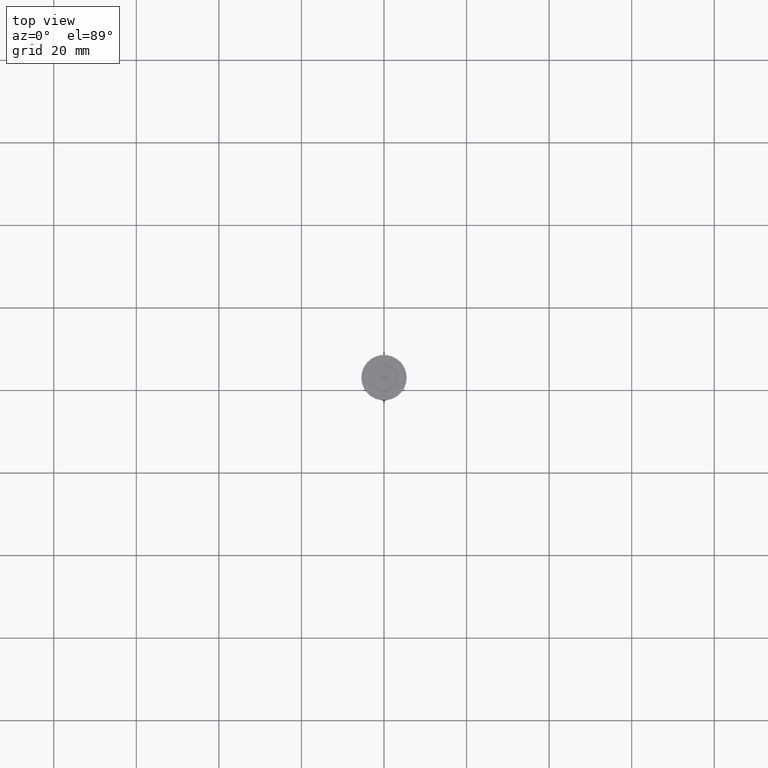
[diagram: clean part render]
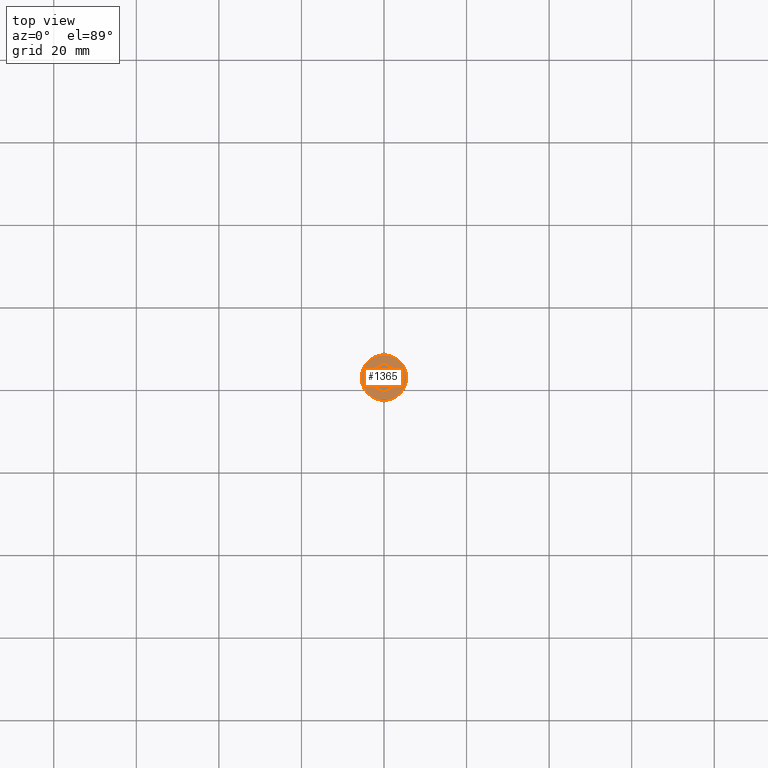
[diagram: same view with one face highlighted and labeled with its STEP entity id]
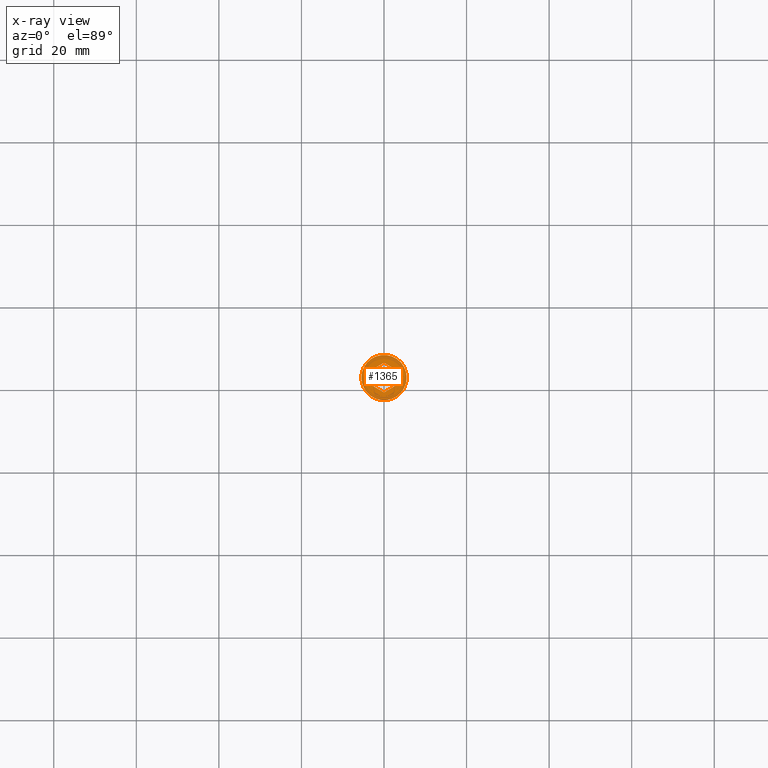
[diagram: x-ray of the same camera — body ghosted, the highlighted face saturated]
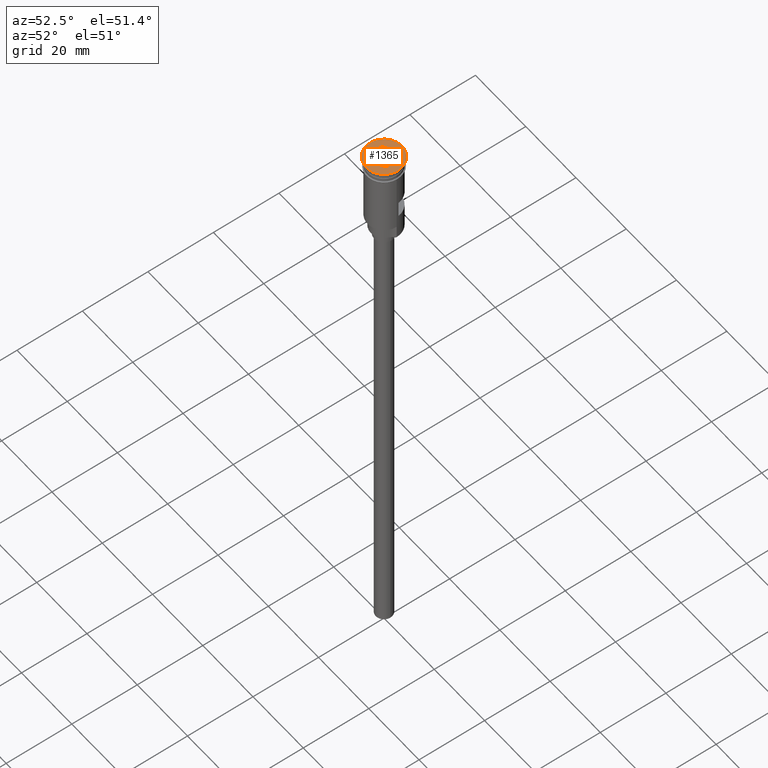
[diagram: same view with one face highlighted and labeled with its STEP entity id]
A machine part, top view. The second image highlights one B-rep face of the part: STEP entity #1365.
The next image is the same camera in x-ray: the body ghosted, the highlighted face saturated — about 0% of this face is hidden behind the body in this view.
A second angle (auxiliary view) of the same face is appended — the face is thin or edge-on in the first view.
In plain terms, the highlighted planar face has unit normal (0, -0, 1).
Its self-contained STEP definition (entity closure, byte-faithful):
#2 = CIRCLE ( 'NONE', #567, 5.500000000000000000 ) ;
#6 = DIRECTION ( 'NONE',  ( -1.251928832280966188E-16, -1.000000000000000000, 0.000000000000000000 ) ) ;
#16 = CARTESIAN_POINT ( 'NONE',  ( 3.099999999999982769, -1.789785834487828353, 0.000000000000000000 ) ) ;
#23 = CARTESIAN_POINT ( 'NONE',  ( 6.103073414120078086E-16, 3.579571668975660259, 0.000000000000000000 ) ) ;
#31 = VECTOR ( 'NONE', #306, 1000.000000000000000 ) ;
#49 = LINE ( 'NONE', #1415, #1423 ) ;
#55 = CARTESIAN_POINT ( 'NONE',  ( -1.958864205101993824E-16, -3.579571668975658927, 0.000000000000000000 ) ) ;
#63 = FACE_OUTER_BOUND ( 'NONE', #613, .T. ) ;
#149 = EDGE_CURVE ( 'NONE', #1410, #1097, #1089, .T. ) ;
#203 = EDGE_CURVE ( 'NONE', #1464, #683, #351, .T. ) ;
#206 = ORIENTED_EDGE ( 'NONE', *, *, #203, .T. ) ;
#215 = VERTEX_POINT ( 'NONE', #839 ) ;
#266 = ORIENTED_EDGE ( 'NONE', *, *, #1375, .T. ) ;
#306 = DIRECTION ( 'NONE',  ( 0.000000000000000000, 1.000000000000000000, 0.000000000000000000 ) ) ;
#351 = LINE ( 'NONE', #1484, #719 ) ;
#365 = ORIENTED_EDGE ( 'NONE', *, *, #149, .T. ) ;
#397 = EDGE_LOOP ( 'NONE', ( #266, #1418, #650, #206, #704, #365 ) ) ;
#467 = EDGE_CURVE ( 'NONE', #215, #728, #49, .T. ) ;
#470 = LINE ( 'NONE', #1366, #1190 ) ;
#564 = CARTESIAN_POINT ( 'NONE',  ( -3.099999999999983213, -1.789785834487829241, 0.000000000000000000 ) ) ;
#567 = AXIS2_PLACEMENT_3D ( 'NONE', #1228, #1235, #1589 ) ;
#595 = VECTOR ( 'NONE', #1507, 1000.000000000000114 ) ;
#610 = DIRECTION ( 'NONE',  ( -0.8660254037844387076, 0.4999999999999998335, 0.000000000000000000 ) ) ;
#613 = EDGE_LOOP ( 'NONE', ( #639, #1157 ) ) ;
#624 = AXIS2_PLACEMENT_3D ( 'NONE', #1263, #642, #789 ) ;
#639 = ORIENTED_EDGE ( 'NONE', *, *, #914, .T. ) ;
#642 = DIRECTION ( 'NONE',  ( 0.000000000000000000, -0.000000000000000000, 1.000000000000000000 ) ) ;
#650 = ORIENTED_EDGE ( 'NONE', *, *, #1285, .T. ) ;
#669 = DIRECTION ( 'NONE',  ( 0.8660254037844387076, 0.4999999999999998890, 0.000000000000000000 ) ) ;
#683 = VERTEX_POINT ( 'NONE', #16 ) ;
#704 = ORIENTED_EDGE ( 'NONE', *, *, #1566, .T. ) ;
#719 = VECTOR ( 'NONE', #6, 1000.000000000000000 ) ;
#720 = EDGE_CURVE ( 'NONE', #1162, #1037, #1477, .T. ) ;
#728 = VERTEX_POINT ( 'NONE', #23 ) ;
#783 = LINE ( 'NONE', #1542, #595 ) ;
#789 = DIRECTION ( 'NONE',  ( 1.000000000000000000, 0.000000000000000000, 0.000000000000000000 ) ) ;
#839 = CARTESIAN_POINT ( 'NONE',  ( -3.099999999999983213, 1.789785834487829908, 0.000000000000000000 ) ) ;
#879 = CARTESIAN_POINT ( 'NONE',  ( -5.500000000000000000, 6.735557395310442023E-16, 0.000000000000000000 ) ) ;
#913 = LINE ( 'NONE', #920, #31 ) ;
#914 = EDGE_CURVE ( 'NONE', #1037, #1162, #2, .T. ) ;
#920 = CARTESIAN_POINT ( 'NONE',  ( -3.099999999999983213, 1.732050807568876971, 0.000000000000000000 ) ) ;
#968 = DIRECTION ( 'NONE',  ( -0.8660254037844385966, -0.5000000000000001110, 0.000000000000000000 ) ) ;
#1037 = VERTEX_POINT ( 'NONE', #1073 ) ;
#1046 = PLANE ( 'NONE',  #624 ) ;
#1073 = CARTESIAN_POINT ( 'NONE',  ( 5.500000000000000000, 0.000000000000000000, 0.000000000000000000 ) ) ;
#1089 = LINE ( 'NONE', #1340, #1191 ) ;
#1097 = VERTEX_POINT ( 'NONE', #564 ) ;
#1134 = DIRECTION ( 'NONE',  ( 1.000000000000000000, 0.000000000000000000, 0.000000000000000000 ) ) ;
#1157 = ORIENTED_EDGE ( 'NONE', *, *, #720, .T. ) ;
#1162 = VERTEX_POINT ( 'NONE', #879 ) ;
#1190 = VECTOR ( 'NONE', #968, 1000.000000000000114 ) ;
#1191 = VECTOR ( 'NONE', #610, 1000.000000000000000 ) ;
#1228 = CARTESIAN_POINT ( 'NONE',  ( 0.000000000000000000, 0.000000000000000000, 0.000000000000000000 ) ) ;
#1235 = DIRECTION ( 'NONE',  ( -0.000000000000000000, -0.000000000000000000, 1.000000000000000000 ) ) ;
#1263 = CARTESIAN_POINT ( 'NONE',  ( 0.000000000000000000, 0.000000000000000000, 0.000000000000000000 ) ) ;
#1275 = CARTESIAN_POINT ( 'NONE',  ( 0.000000000000000000, 0.000000000000000000, 0.000000000000000000 ) ) ;
#1285 = EDGE_CURVE ( 'NONE', #728, #1464, #783, .T. ) ;
#1318 = CARTESIAN_POINT ( 'NONE',  ( 3.099999999999983213, 1.789785834487831462, 0.000000000000000000 ) ) ;
#1340 = CARTESIAN_POINT ( 'NONE',  ( -3.049999999999991385, -1.818653347947305932, 0.000000000000000000 ) ) ;
#1365 = ADVANCED_FACE ( 'NONE', ( #1527, #63 ), #1046, .T. ) ;
#1366 = CARTESIAN_POINT ( 'NONE',  ( 0.04999999999999141936, -3.550704155516182237, 0.000000000000000000 ) ) ;
#1375 = EDGE_CURVE ( 'NONE', #1097, #215, #913, .T. ) ;
#1386 = DIRECTION ( 'NONE',  ( -0.000000000000000000, -0.000000000000000000, 1.000000000000000000 ) ) ;
#1410 = VERTEX_POINT ( 'NONE', #55 ) ;
#1415 = CARTESIAN_POINT ( 'NONE',  ( -0.04999999999999187039, 3.550704155516183125, 0.000000000000000000 ) ) ;
#1418 = ORIENTED_EDGE ( 'NONE', *, *, #467, .T. ) ;
#1423 = VECTOR ( 'NONE', #669, 1000.000000000000000 ) ;
#1448 = AXIS2_PLACEMENT_3D ( 'NONE', #1275, #1386, #1134 ) ;
#1464 = VERTEX_POINT ( 'NONE', #1318 ) ;
#1477 = CIRCLE ( 'NONE', #1448, 5.500000000000000000 ) ;
#1484 = CARTESIAN_POINT ( 'NONE',  ( 3.099999999999982769, -1.732050807568876083, 0.000000000000000000 ) ) ;
#1507 = DIRECTION ( 'NONE',  ( 0.8660254037844388186, -0.4999999999999997780, 0.000000000000000000 ) ) ;
#1527 = FACE_BOUND ( 'NONE', #397, .T. ) ;
#1542 = CARTESIAN_POINT ( 'NONE',  ( 3.049999999999991829, 1.818653347947307708, 0.000000000000000000 ) ) ;
#1566 = EDGE_CURVE ( 'NONE', #683, #1410, #470, .T. ) ;
#1589 = DIRECTION ( 'NONE',  ( 1.000000000000000000, 0.000000000000000000, 0.000000000000000000 ) ) ;